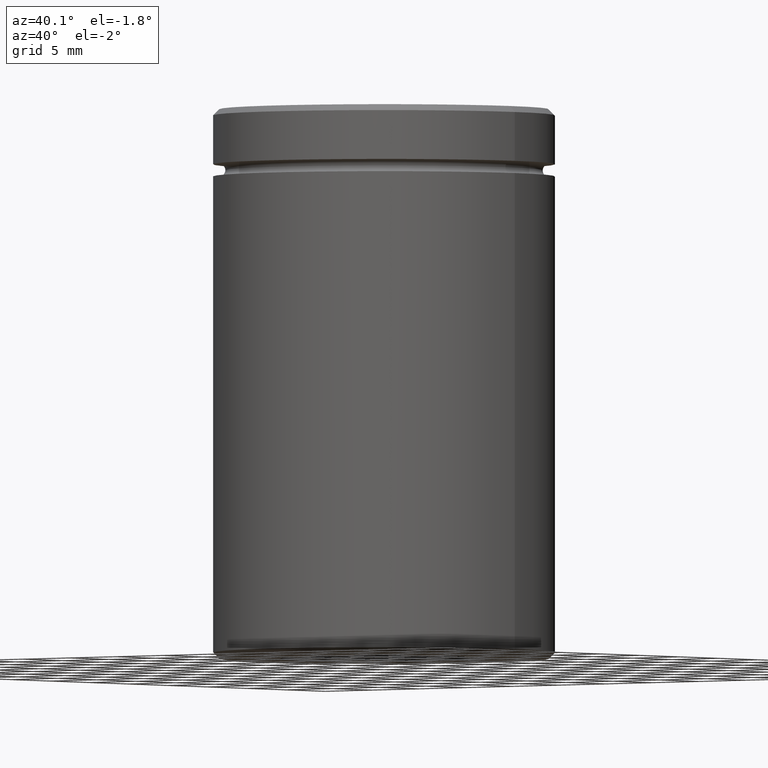
[diagram: clean part render]
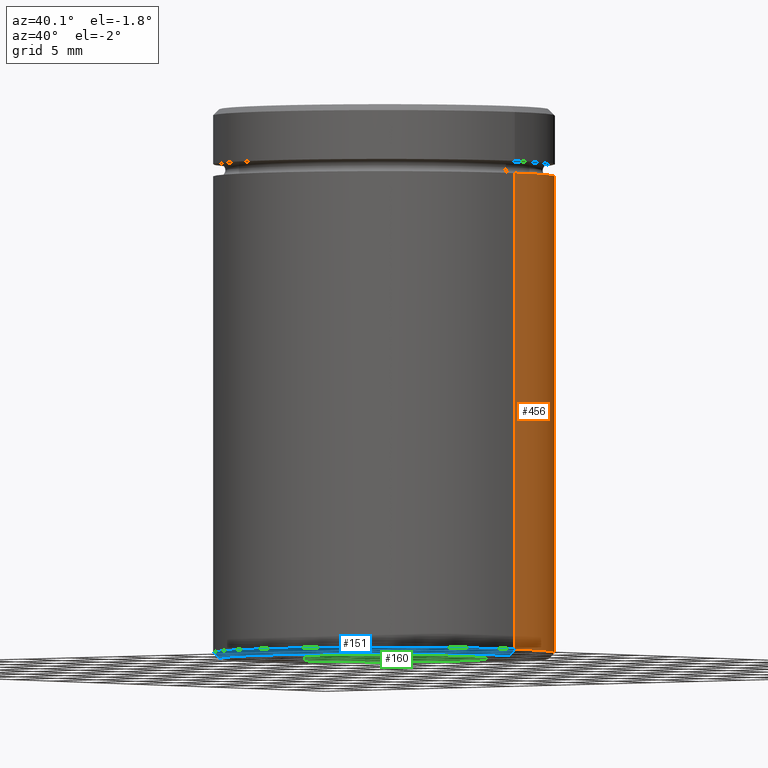
[diagram: same view with three faces highlighted in distinct colors, each labeled with its STEP entity id]
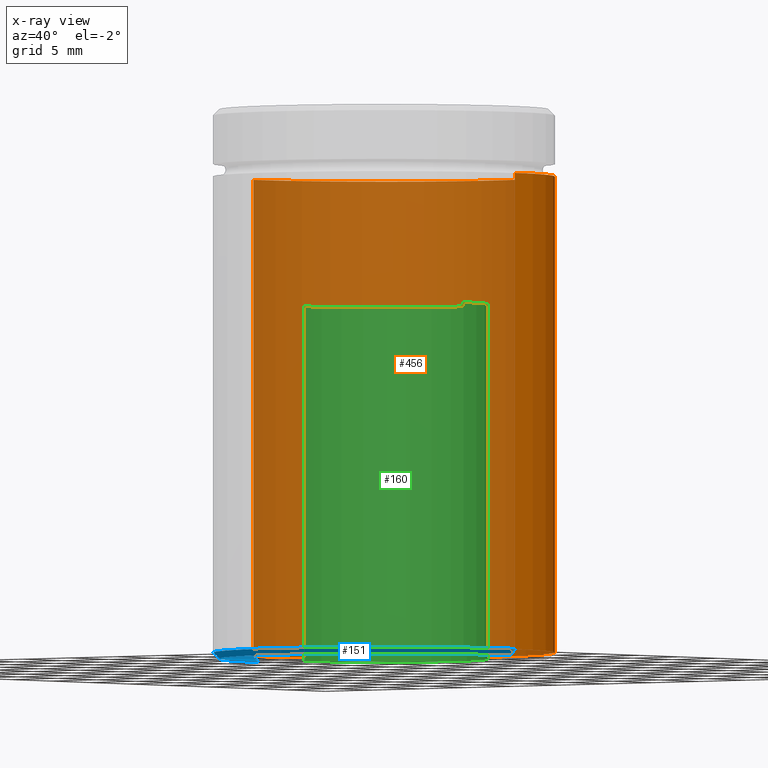
[diagram: x-ray of the same camera — body ghosted, the three highlighted faces saturated]
A machine part, auxiliary view with three faces highlighted in distinct colors.
The next image is the same camera in x-ray (body ghosted, the three faces saturated) — at least one of them is partly hidden behind the body in this view.
Their STEP definitions:

[orange] entity #456 — the highlighted cylindrical surface (partial cylindrical patch) has radius 14 mm, axis along (-0, -0, 1).
#1 = CIRCLE ( 'NONE', #318, 14.00000000000000000 ) ;
#3 = CYLINDRICAL_SURFACE ( 'NONE', #127, 14.00000000000000000 ) ;
#19 = CIRCLE ( 'NONE', #294, 14.00000000000000000 ) ;
#25 = CARTESIAN_POINT ( 'NONE',  ( 0.000000000000000000, 0.000000000000000000, -44.49999999999999289 ) ) ;
#32 = CARTESIAN_POINT ( 'NONE',  ( 14.00000000000000000, 0.000000000000000000, -5.500000000000000000 ) ) ;
#41 = ORIENTED_EDGE ( 'NONE', *, *, #126, .F. ) ;
#48 = DIRECTION ( 'NONE',  ( -0.000000000000000000, -0.000000000000000000, 1.000000000000000000 ) ) ;
#91 = VERTEX_POINT ( 'NONE', #303 ) ;
#112 = DIRECTION ( 'NONE',  ( -1.000000000000000000, 0.000000000000000000, 0.000000000000000000 ) ) ;
#126 = EDGE_CURVE ( 'NONE', #409, #533, #1, .T. ) ;
#127 = AXIS2_PLACEMENT_3D ( 'NONE', #183, #527, #140 ) ;
#140 = DIRECTION ( 'NONE',  ( 1.000000000000000000, 0.000000000000000000, 0.000000000000000000 ) ) ;
#144 = ORIENTED_EDGE ( 'NONE', *, *, #277, .T. ) ;
#168 = DIRECTION ( 'NONE',  ( 1.000000000000000000, 0.000000000000000000, 0.000000000000000000 ) ) ;
#183 = CARTESIAN_POINT ( 'NONE',  ( 0.000000000000000000, 0.000000000000000000, 0.000000000000000000 ) ) ;
#188 = VECTOR ( 'NONE', #204, 1000.000000000000000 ) ;
#204 = DIRECTION ( 'NONE',  ( -0.000000000000000000, -0.000000000000000000, 1.000000000000000000 ) ) ;
#267 = EDGE_CURVE ( 'NONE', #269, #91, #19, .T. ) ;
#269 = VERTEX_POINT ( 'NONE', #457 ) ;
#277 = EDGE_CURVE ( 'NONE', #91, #533, #372, .T. ) ;
#278 = CARTESIAN_POINT ( 'NONE',  ( -14.00000000000000000, 1.714505518806294638E-15, -5.500000000000000000 ) ) ;
#284 = DIRECTION ( 'NONE',  ( -0.000000000000000000, -0.000000000000000000, 1.000000000000000000 ) ) ;
#294 = AXIS2_PLACEMENT_3D ( 'NONE', #25, #284, #112 ) ;
#303 = CARTESIAN_POINT ( 'NONE',  ( -14.00000000000000000, 1.714505518806294638E-15, -44.49999999999999289 ) ) ;
#316 = LINE ( 'NONE', #448, #397 ) ;
#318 = AXIS2_PLACEMENT_3D ( 'NONE', #562, #388, #168 ) ;
#372 = LINE ( 'NONE', #556, #188 ) ;
#387 = FACE_OUTER_BOUND ( 'NONE', #454, .T. ) ;
#388 = DIRECTION ( 'NONE',  ( -0.000000000000000000, -0.000000000000000000, 1.000000000000000000 ) ) ;
#397 = VECTOR ( 'NONE', #48, 1000.000000000000000 ) ;
#403 = ORIENTED_EDGE ( 'NONE', *, *, #267, .T. ) ;
#409 = VERTEX_POINT ( 'NONE', #32 ) ;
#414 = ORIENTED_EDGE ( 'NONE', *, *, #561, .F. ) ;
#448 = CARTESIAN_POINT ( 'NONE',  ( 14.00000000000000000, 0.000000000000000000, 0.000000000000000000 ) ) ;
#454 = EDGE_LOOP ( 'NONE', ( #403, #144, #41, #414 ) ) ;
#456 = ADVANCED_FACE ( 'NONE', ( #387 ), #3, .T. ) ;
#457 = CARTESIAN_POINT ( 'NONE',  ( 14.00000000000000000, 0.000000000000000000, -44.49999999999999289 ) ) ;
#527 = DIRECTION ( 'NONE',  ( -0.000000000000000000, -0.000000000000000000, 1.000000000000000000 ) ) ;
#533 = VERTEX_POINT ( 'NONE', #278 ) ;
#556 = CARTESIAN_POINT ( 'NONE',  ( -14.00000000000000000, 1.714505518806294638E-15, 0.000000000000000000 ) ) ;
#561 = EDGE_CURVE ( 'NONE', #269, #409, #316, .T. ) ;
#562 = CARTESIAN_POINT ( 'NONE',  ( 0.000000000000000000, 0.000000000000000000, -5.500000000000000000 ) ) ;

[blue] entity #151 — the highlighted conical surface has half-angle 45 deg.
#9 = FACE_OUTER_BOUND ( 'NONE', #364, .T. ) ;
#26 = VERTEX_POINT ( 'NONE', #381 ) ;
#39 = CARTESIAN_POINT ( 'NONE',  ( 0.000000000000000000, 0.000000000000000000, -45.00000000000000000 ) ) ;
#46 = EDGE_CURVE ( 'NONE', #91, #269, #53, .T. ) ;
#53 = CIRCLE ( 'NONE', #306, 14.00000000000000000 ) ;
#83 = LINE ( 'NONE', #254, #156 ) ;
#91 = VERTEX_POINT ( 'NONE', #303 ) ;
#94 = ORIENTED_EDGE ( 'NONE', *, *, #410, .T. ) ;
#96 = CARTESIAN_POINT ( 'NONE',  ( 13.49999999999999467, 0.000000000000000000, -45.00000000000000000 ) ) ;
#138 = EDGE_CURVE ( 'NONE', #552, #26, #436, .T. ) ;
#145 = CARTESIAN_POINT ( 'NONE',  ( 0.000000000000000000, 0.000000000000000000, -44.49999999999999289 ) ) ;
#151 = ADVANCED_FACE ( 'NONE', ( #9 ), #262, .T. ) ;
#156 = VECTOR ( 'NONE', #431, 1000.000000000000000 ) ;
#179 = CARTESIAN_POINT ( 'NONE',  ( 0.000000000000000000, 0.000000000000000000, -44.49999999999999289 ) ) ;
#182 = DIRECTION ( 'NONE',  ( -1.000000000000000000, 0.000000000000000000, 0.000000000000000000 ) ) ;
#191 = ORIENTED_EDGE ( 'NONE', *, *, #138, .F. ) ;
#197 = AXIS2_PLACEMENT_3D ( 'NONE', #39, #224, #182 ) ;
#205 = ORIENTED_EDGE ( 'NONE', *, *, #46, .F. ) ;
#224 = DIRECTION ( 'NONE',  ( 0.000000000000000000, 0.000000000000000000, -1.000000000000000000 ) ) ;
#254 = CARTESIAN_POINT ( 'NONE',  ( 14.00000000000000000, 0.000000000000000000, -44.49999999999999289 ) ) ;
#257 = LINE ( 'NONE', #302, #286 ) ;
#262 = CONICAL_SURFACE ( 'NONE', #447, 14.00000000000000000, 0.7853981633974466137 ) ;
#269 = VERTEX_POINT ( 'NONE', #457 ) ;
#286 = VECTOR ( 'NONE', #427, 1000.000000000000000 ) ;
#302 = CARTESIAN_POINT ( 'NONE',  ( -14.00000000000000000, 1.714505518806294638E-15, -44.49999999999999289 ) ) ;
#303 = CARTESIAN_POINT ( 'NONE',  ( -14.00000000000000000, 1.714505518806294638E-15, -44.49999999999999289 ) ) ;
#306 = AXIS2_PLACEMENT_3D ( 'NONE', #179, #422, #511 ) ;
#320 = DIRECTION ( 'NONE',  ( -0.000000000000000000, -0.000000000000000000, 1.000000000000000000 ) ) ;
#360 = DIRECTION ( 'NONE',  ( 1.000000000000000000, 0.000000000000000000, 0.000000000000000000 ) ) ;
#364 = EDGE_LOOP ( 'NONE', ( #415, #191, #94, #205 ) ) ;
#381 = CARTESIAN_POINT ( 'NONE',  ( -13.49999999999999467, 1.683889348827610456E-15, -45.00000000000000000 ) ) ;
#394 = EDGE_CURVE ( 'NONE', #26, #91, #257, .T. ) ;
#410 = EDGE_CURVE ( 'NONE', #552, #269, #83, .T. ) ;
#415 = ORIENTED_EDGE ( 'NONE', *, *, #394, .F. ) ;
#422 = DIRECTION ( 'NONE',  ( -0.000000000000000000, -0.000000000000000000, 1.000000000000000000 ) ) ;
#427 = DIRECTION ( 'NONE',  ( -0.7071067811865463515, 8.659560562354918067E-17, 0.7071067811865487940 ) ) ;
#431 = DIRECTION ( 'NONE',  ( 0.7071067811865463515, 0.000000000000000000, 0.7071067811865487940 ) ) ;
#436 = CIRCLE ( 'NONE', #197, 13.49999999999999467 ) ;
#447 = AXIS2_PLACEMENT_3D ( 'NONE', #145, #320, #360 ) ;
#457 = CARTESIAN_POINT ( 'NONE',  ( 14.00000000000000000, 0.000000000000000000, -44.49999999999999289 ) ) ;
#511 = DIRECTION ( 'NONE',  ( -1.000000000000000000, 0.000000000000000000, 0.000000000000000000 ) ) ;
#552 = VERTEX_POINT ( 'NONE', #96 ) ;

[green] entity #160 — the highlighted cylindrical surface (partial cylindrical patch) has radius 8.5 mm, axis along (-0, -0, -1).
#10 = CIRCLE ( 'NONE', #459, 8.500000000000000000 ) ;
#34 = AXIS2_PLACEMENT_3D ( 'NONE', #281, #92, #266 ) ;
#35 = VECTOR ( 'NONE', #486, 1000.000000000000000 ) ;
#59 = DIRECTION ( 'NONE',  ( -1.000000000000000000, 0.000000000000000000, 0.000000000000000000 ) ) ;
#74 = CIRCLE ( 'NONE', #369, 8.500000000000000000 ) ;
#85 = DIRECTION ( 'NONE',  ( -1.000000000000000000, 0.000000000000000000, 0.000000000000000000 ) ) ;
#92 = DIRECTION ( 'NONE',  ( -0.000000000000000000, -0.000000000000000000, -1.000000000000000000 ) ) ;
#98 = CARTESIAN_POINT ( 'NONE',  ( -8.500000000000000000, 0.000000000000000000, -15.99999999999999645 ) ) ;
#139 = CARTESIAN_POINT ( 'NONE',  ( 0.000000000000000000, 0.000000000000000000, -45.00000000000000000 ) ) ;
#143 = LINE ( 'NONE', #308, #35 ) ;
#160 = ADVANCED_FACE ( 'NONE', ( #311 ), #495, .F. ) ;
#189 = EDGE_CURVE ( 'NONE', #195, #439, #279, .T. ) ;
#195 = VERTEX_POINT ( 'NONE', #98 ) ;
#207 = EDGE_CURVE ( 'NONE', #439, #361, #10, .T. ) ;
#216 = CARTESIAN_POINT ( 'NONE',  ( 0.000000000000000000, 0.000000000000000000, -15.99999999999999645 ) ) ;
#220 = ORIENTED_EDGE ( 'NONE', *, *, #429, .F. ) ;
#227 = VERTEX_POINT ( 'NONE', #275 ) ;
#253 = ORIENTED_EDGE ( 'NONE', *, *, #207, .T. ) ;
#260 = CARTESIAN_POINT ( 'NONE',  ( -8.500000000000000000, 0.000000000000000000, -45.00000000000000000 ) ) ;
#266 = DIRECTION ( 'NONE',  ( -1.000000000000000000, 0.000000000000000000, 0.000000000000000000 ) ) ;
#275 = CARTESIAN_POINT ( 'NONE',  ( 8.500000000000000000, 1.040949779275249943E-15, -15.99999999999999645 ) ) ;
#279 = LINE ( 'NONE', #530, #407 ) ;
#281 = CARTESIAN_POINT ( 'NONE',  ( 0.000000000000000000, 0.000000000000000000, -15.99999999999999645 ) ) ;
#308 = CARTESIAN_POINT ( 'NONE',  ( 8.500000000000000000, 1.040949779275249943E-15, -15.99999999999999645 ) ) ;
#309 = EDGE_LOOP ( 'NONE', ( #417, #220, #365, #253 ) ) ;
#311 = FACE_OUTER_BOUND ( 'NONE', #309, .T. ) ;
#361 = VERTEX_POINT ( 'NONE', #380 ) ;
#365 = ORIENTED_EDGE ( 'NONE', *, *, #189, .T. ) ;
#369 = AXIS2_PLACEMENT_3D ( 'NONE', #216, #479, #85 ) ;
#380 = CARTESIAN_POINT ( 'NONE',  ( 8.500000000000000000, 1.040949779275249943E-15, -45.00000000000000000 ) ) ;
#407 = VECTOR ( 'NONE', #534, 1000.000000000000000 ) ;
#417 = ORIENTED_EDGE ( 'NONE', *, *, #464, .F. ) ;
#429 = EDGE_CURVE ( 'NONE', #195, #227, #74, .T. ) ;
#439 = VERTEX_POINT ( 'NONE', #260 ) ;
#453 = DIRECTION ( 'NONE',  ( 0.000000000000000000, 0.000000000000000000, -1.000000000000000000 ) ) ;
#459 = AXIS2_PLACEMENT_3D ( 'NONE', #139, #453, #59 ) ;
#464 = EDGE_CURVE ( 'NONE', #227, #361, #143, .T. ) ;
#479 = DIRECTION ( 'NONE',  ( 0.000000000000000000, 0.000000000000000000, -1.000000000000000000 ) ) ;
#486 = DIRECTION ( 'NONE',  ( -0.000000000000000000, -0.000000000000000000, -1.000000000000000000 ) ) ;
#495 = CYLINDRICAL_SURFACE ( 'NONE', #34, 8.500000000000000000 ) ;
#530 = CARTESIAN_POINT ( 'NONE',  ( -8.500000000000000000, 0.000000000000000000, -15.99999999999999645 ) ) ;
#534 = DIRECTION ( 'NONE',  ( -0.000000000000000000, -0.000000000000000000, -1.000000000000000000 ) ) ;